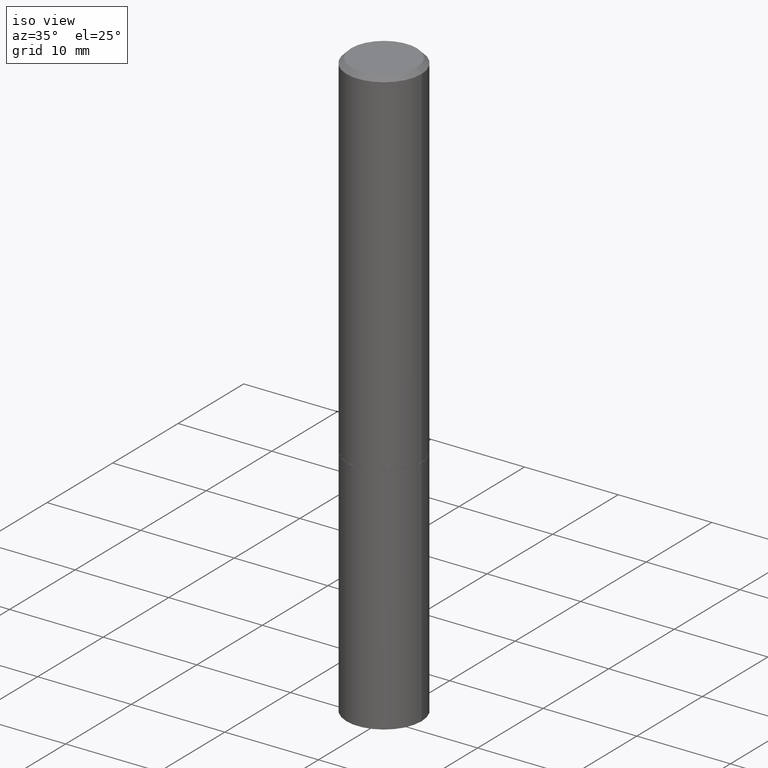
[diagram: clean part render]
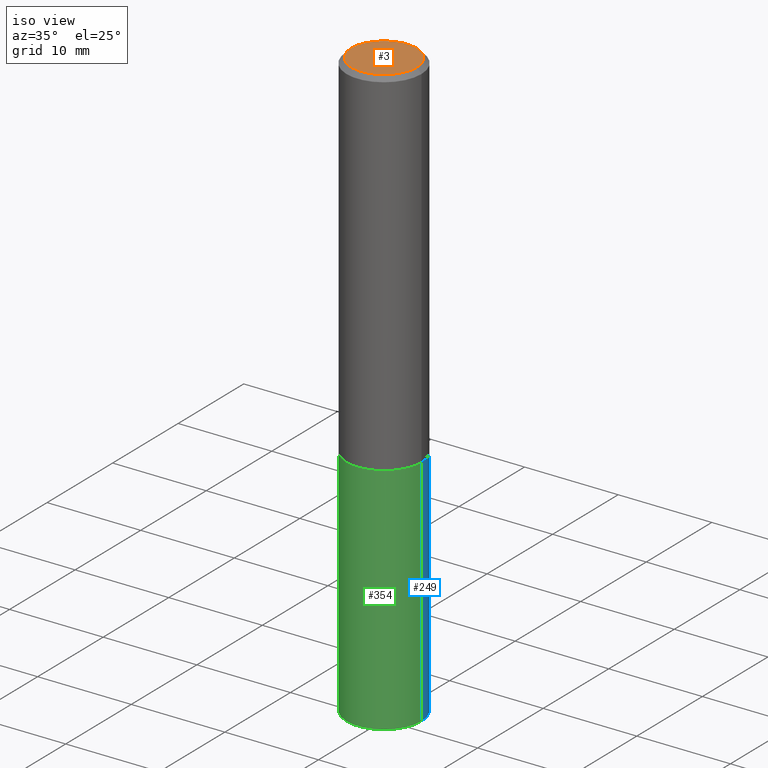
[diagram: same view with three faces highlighted in distinct colors, each labeled with its STEP entity id]
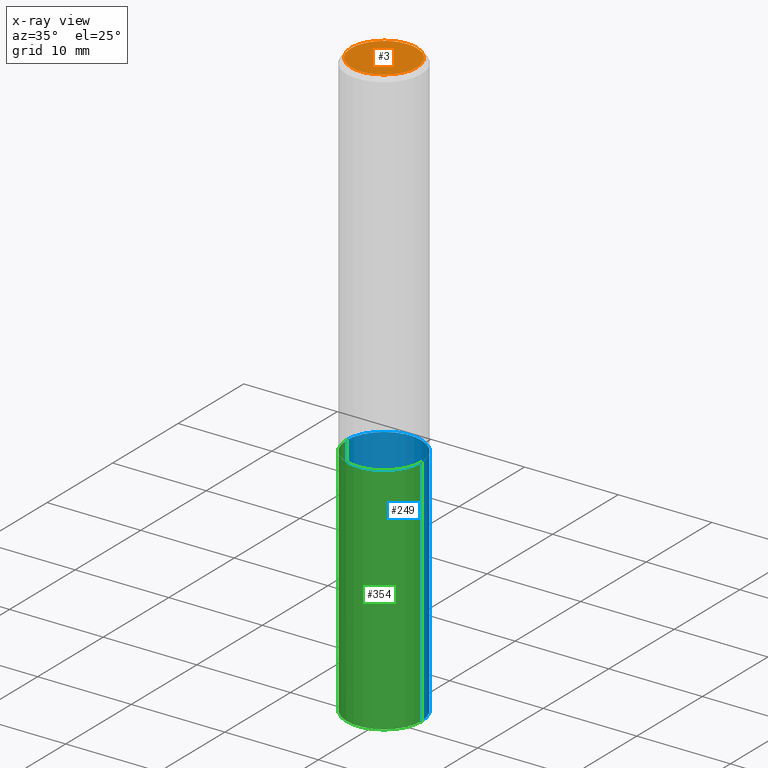
[diagram: x-ray of the same camera — body ghosted, the three highlighted faces saturated]
A machine part, iso view with three faces highlighted in distinct colors.
The next image is the same camera in x-ray (body ghosted, the three faces saturated) — at least one of them is partly hidden behind the body in this view.
Their STEP definitions:

[orange] entity #3 — the highlighted planar face has unit normal (0, -0, -1).
#3 = ADVANCED_FACE ( 'NONE', ( #248 ), #118, .F. ) ;
#4 = CARTESIAN_POINT ( 'NONE',  ( -2.087702828670439639E-46, 2.980686340760894400E-32, 8.537024980200822558E-18 ) ) ;
#11 = CARTESIAN_POINT ( 'NONE',  ( 9.601573681818600950E-16, 0.1374999999999997891, -4.758101716008313957E-16 ) ) ;
#47 = AXIS2_PLACEMENT_3D ( 'NONE', #145, #311, #119 ) ;
#49 = AXIS2_PLACEMENT_3D ( 'NONE', #4, #271, #80 ) ;
#54 = VERTEX_POINT ( 'NONE', #165 ) ;
#64 = CARTESIAN_POINT ( 'NONE',  ( -0.1374999999999997891, 9.950721815702913496E-16, 8.537024980193986277E-18 ) ) ;
#80 = DIRECTION ( 'NONE',  ( 1.000000000000000000, -6.982962677686267499E-15, 4.876173381029107889E-29 ) ) ;
#84 = ORIENTED_EDGE ( 'NONE', *, *, #315, .T. ) ;
#91 = ORIENTED_EDGE ( 'NONE', *, *, #169, .T. ) ;
#102 = CIRCLE ( 'NONE', #49, 0.1374999999999997891 ) ;
#118 = PLANE ( 'NONE',  #204 ) ;
#119 = DIRECTION ( 'NONE',  ( 1.000000000000000000, -6.982962677686267499E-15, 4.876173381029107889E-29 ) ) ;
#120 = DIRECTION ( 'NONE',  ( -1.000000000000000000, 6.982962677686265922E-15, -4.876176775795935793E-29 ) ) ;
#145 = CARTESIAN_POINT ( 'NONE',  ( -2.087702828670439639E-46, 2.980686340760894400E-32, 8.537024980200822558E-18 ) ) ;
#158 = EDGE_LOOP ( 'NONE', ( #84, #91 ) ) ;
#165 = CARTESIAN_POINT ( 'NONE',  ( 0.1374999999999997891, -1.046838268059730914E-15, 8.537024980207840646E-18 ) ) ;
#169 = EDGE_CURVE ( 'NONE', #54, #324, #102, .T. ) ;
#192 = CIRCLE ( 'NONE', #47, 0.1374999999999997891 ) ;
#203 = DIRECTION ( 'NONE',  ( 2.438088387897960049E-29, -3.491481338843145188E-15, -1.000000000000000000 ) ) ;
#204 = AXIS2_PLACEMENT_3D ( 'NONE', #11, #203, #120 ) ;
#248 = FACE_OUTER_BOUND ( 'NONE', #158, .T. ) ;
#271 = DIRECTION ( 'NONE',  ( -2.445468806185136597E-29, 3.491481338843145583E-15, 1.000000000000000000 ) ) ;
#311 = DIRECTION ( 'NONE',  ( -2.445468806185136597E-29, 3.491481338843145583E-15, 1.000000000000000000 ) ) ;
#315 = EDGE_CURVE ( 'NONE', #324, #54, #192, .T. ) ;
#324 = VERTEX_POINT ( 'NONE', #64 ) ;

[blue] entity #249 — the highlighted cylindrical surface (partial cylindrical patch) has radius 4.0005 mm, axis along (-0, 0, 1).
#7 = FACE_OUTER_BOUND ( 'NONE', #35, .T. ) ;
#15 = CARTESIAN_POINT ( 'NONE',  ( 0.1575000000000000011, -9.759737786468242027E-15, -2.480300000000000171 ) ) ;
#16 = AXIS2_PLACEMENT_3D ( 'NONE', #27, #22, #20 ) ;
#20 = DIRECTION ( 'NONE',  ( 1.000000000000000000, -6.982962677686261977E-15, 0.000000000000000000 ) ) ;
#22 = DIRECTION ( 'NONE',  ( -2.445468806185136597E-29, 3.491481338843145583E-15, 1.000000000000000000 ) ) ;
#27 = CARTESIAN_POINT ( 'NONE',  ( 6.065496279980994755E-29, -8.659921164732655335E-15, -2.480300000000000171 ) ) ;
#35 = EDGE_LOOP ( 'NONE', ( #247, #280, #101, #234 ) ) ;
#38 = DIRECTION ( 'NONE',  ( -2.445468806185136877E-29, 3.491481338843145188E-15, 1.000000000000000000 ) ) ;
#69 = CYLINDRICAL_SURFACE ( 'NONE', #312, 0.1575000000000000011 ) ;
#87 = CIRCLE ( 'NONE', #228, 0.1575000000000000011 ) ;
#101 = ORIENTED_EDGE ( 'NONE', *, *, #187, .F. ) ;
#104 = CARTESIAN_POINT ( 'NONE',  ( -0.1575000000000000011, -5.822483814998842744E-15, -1.496000000000000441 ) ) ;
#106 = DIRECTION ( 'NONE',  ( -2.445468806185136597E-29, 3.491481338843145583E-15, 1.000000000000000000 ) ) ;
#107 = VERTEX_POINT ( 'NONE', #15 ) ;
#131 = VECTOR ( 'NONE', #193, 39.37007874015748143 ) ;
#132 = VERTEX_POINT ( 'NONE', #149 ) ;
#134 = EDGE_CURVE ( 'NONE', #107, #132, #359, .T. ) ;
#149 = CARTESIAN_POINT ( 'NONE',  ( -0.1575000000000000011, -5.822483814998842744E-15, -2.480300000000000171 ) ) ;
#164 = CARTESIAN_POINT ( 'NONE',  ( -0.1575000000000000011, 1.119104808822157801E-15, -7.747322767151475583E-30 ) ) ;
#170 = LINE ( 'NONE', #164, #356 ) ;
#187 = EDGE_CURVE ( 'NONE', #364, #197, #87, .T. ) ;
#193 = DIRECTION ( 'NONE',  ( -2.445468806185136877E-29, 3.491481338843145188E-15, 1.000000000000000000 ) ) ;
#197 = VERTEX_POINT ( 'NONE', #104 ) ;
#212 = DIRECTION ( 'NONE',  ( 1.000000000000000000, -6.982962677686268288E-15, 0.000000000000000000 ) ) ;
#219 = LINE ( 'NONE', #224, #131 ) ;
#224 = CARTESIAN_POINT ( 'NONE',  ( 0.1575000000000000011, -1.099816621735586889E-15, 7.679978421878598033E-30 ) ) ;
#228 = AXIS2_PLACEMENT_3D ( 'NONE', #362, #106, #212 ) ;
#234 = ORIENTED_EDGE ( 'NONE', *, *, #303, .F. ) ;
#247 = ORIENTED_EDGE ( 'NONE', *, *, #134, .T. ) ;
#249 = ADVANCED_FACE ( 'NONE', ( #7 ), #69, .T. ) ;
#254 = DIRECTION ( 'NONE',  ( 1.000000000000000000, -6.982962677686265922E-15, 4.876176775795935232E-29 ) ) ;
#280 = ORIENTED_EDGE ( 'NONE', *, *, #341, .T. ) ;
#291 = CARTESIAN_POINT ( 'NONE',  ( 0.1575000000000000011, -6.323072704644934417E-15, -1.496000000000000441 ) ) ;
#303 = EDGE_CURVE ( 'NONE', #107, #364, #219, .T. ) ;
#312 = AXIS2_PLACEMENT_3D ( 'NONE', #344, #316, #254 ) ;
#316 = DIRECTION ( 'NONE',  ( -2.445468806185136597E-29, 3.491481338843145583E-15, 1.000000000000000000 ) ) ;
#341 = EDGE_CURVE ( 'NONE', #132, #197, #170, .T. ) ;
#344 = CARTESIAN_POINT ( 'NONE',  ( 0.000000000000000000, 0.000000000000000000, 0.000000000000000000 ) ) ;
#356 = VECTOR ( 'NONE', #38, 39.37007874015748143 ) ;
#359 = CIRCLE ( 'NONE', #16, 0.1575000000000000011 ) ;
#362 = CARTESIAN_POINT ( 'NONE',  ( 3.658421334052965286E-29, -5.223256082909346937E-15, -1.496000000000000441 ) ) ;
#364 = VERTEX_POINT ( 'NONE', #291 ) ;

[green] entity #354 — the highlighted cylindrical surface (partial cylindrical patch) has radius 4.0005 mm, axis along (-0, 0, 1).
#15 = CARTESIAN_POINT ( 'NONE',  ( 0.1575000000000000011, -9.759737786468242027E-15, -2.480300000000000171 ) ) ;
#24 = EDGE_LOOP ( 'NONE', ( #244, #180, #136, #220 ) ) ;
#36 = CYLINDRICAL_SURFACE ( 'NONE', #261, 0.1575000000000000011 ) ;
#38 = DIRECTION ( 'NONE',  ( -2.445468806185136877E-29, 3.491481338843145188E-15, 1.000000000000000000 ) ) ;
#43 = CARTESIAN_POINT ( 'NONE',  ( 0.000000000000000000, 0.000000000000000000, 0.000000000000000000 ) ) ;
#52 = DIRECTION ( 'NONE',  ( 1.000000000000000000, -6.982962677686261977E-15, 0.000000000000000000 ) ) ;
#76 = EDGE_CURVE ( 'NONE', #197, #364, #233, .T. ) ;
#95 = DIRECTION ( 'NONE',  ( -2.445468806185136597E-29, 3.491481338843145583E-15, 1.000000000000000000 ) ) ;
#104 = CARTESIAN_POINT ( 'NONE',  ( -0.1575000000000000011, -5.822483814998842744E-15, -1.496000000000000441 ) ) ;
#107 = VERTEX_POINT ( 'NONE', #15 ) ;
#110 = CIRCLE ( 'NONE', #215, 0.1575000000000000011 ) ;
#114 = CARTESIAN_POINT ( 'NONE',  ( 3.658421334052965286E-29, -5.223256082909346937E-15, -1.496000000000000441 ) ) ;
#125 = EDGE_CURVE ( 'NONE', #132, #107, #110, .T. ) ;
#126 = DIRECTION ( 'NONE',  ( -2.445468806185136597E-29, 3.491481338843145583E-15, 1.000000000000000000 ) ) ;
#131 = VECTOR ( 'NONE', #193, 39.37007874015748143 ) ;
#132 = VERTEX_POINT ( 'NONE', #149 ) ;
#136 = ORIENTED_EDGE ( 'NONE', *, *, #303, .T. ) ;
#142 = DIRECTION ( 'NONE',  ( -2.445468806185136597E-29, 3.491481338843145583E-15, 1.000000000000000000 ) ) ;
#149 = CARTESIAN_POINT ( 'NONE',  ( -0.1575000000000000011, -5.822483814998842744E-15, -2.480300000000000171 ) ) ;
#151 = CARTESIAN_POINT ( 'NONE',  ( 6.065496279980994755E-29, -8.659921164732655335E-15, -2.480300000000000171 ) ) ;
#164 = CARTESIAN_POINT ( 'NONE',  ( -0.1575000000000000011, 1.119104808822157801E-15, -7.747322767151475583E-30 ) ) ;
#170 = LINE ( 'NONE', #164, #356 ) ;
#180 = ORIENTED_EDGE ( 'NONE', *, *, #125, .T. ) ;
#193 = DIRECTION ( 'NONE',  ( -2.445468806185136877E-29, 3.491481338843145188E-15, 1.000000000000000000 ) ) ;
#197 = VERTEX_POINT ( 'NONE', #104 ) ;
#215 = AXIS2_PLACEMENT_3D ( 'NONE', #151, #126, #52 ) ;
#219 = LINE ( 'NONE', #224, #131 ) ;
#220 = ORIENTED_EDGE ( 'NONE', *, *, #76, .F. ) ;
#224 = CARTESIAN_POINT ( 'NONE',  ( 0.1575000000000000011, -1.099816621735586889E-15, 7.679978421878598033E-30 ) ) ;
#233 = CIRCLE ( 'NONE', #273, 0.1575000000000000011 ) ;
#244 = ORIENTED_EDGE ( 'NONE', *, *, #341, .F. ) ;
#261 = AXIS2_PLACEMENT_3D ( 'NONE', #43, #142, #342 ) ;
#273 = AXIS2_PLACEMENT_3D ( 'NONE', #114, #95, #283 ) ;
#283 = DIRECTION ( 'NONE',  ( 1.000000000000000000, -6.982962677686268288E-15, 0.000000000000000000 ) ) ;
#288 = FACE_OUTER_BOUND ( 'NONE', #24, .T. ) ;
#291 = CARTESIAN_POINT ( 'NONE',  ( 0.1575000000000000011, -6.323072704644934417E-15, -1.496000000000000441 ) ) ;
#303 = EDGE_CURVE ( 'NONE', #107, #364, #219, .T. ) ;
#341 = EDGE_CURVE ( 'NONE', #132, #197, #170, .T. ) ;
#342 = DIRECTION ( 'NONE',  ( 1.000000000000000000, -6.982962677686265922E-15, 4.876176775795935232E-29 ) ) ;
#354 = ADVANCED_FACE ( 'NONE', ( #288 ), #36, .T. ) ;
#356 = VECTOR ( 'NONE', #38, 39.37007874015748143 ) ;
#364 = VERTEX_POINT ( 'NONE', #291 ) ;